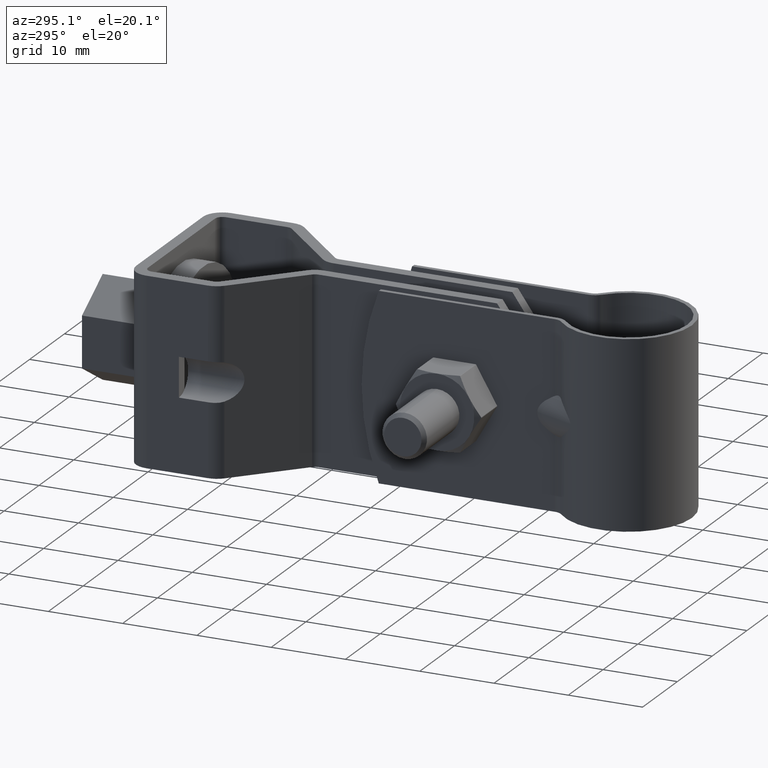
[diagram: clean part render]
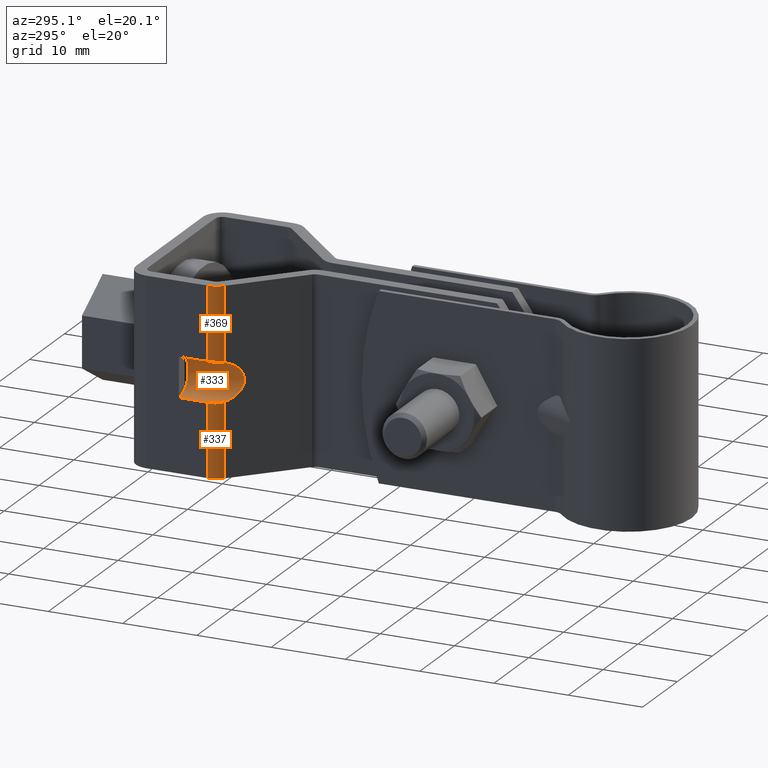
[diagram: same view with one multi-face feature highlighted, each face labeled with its STEP entity id]
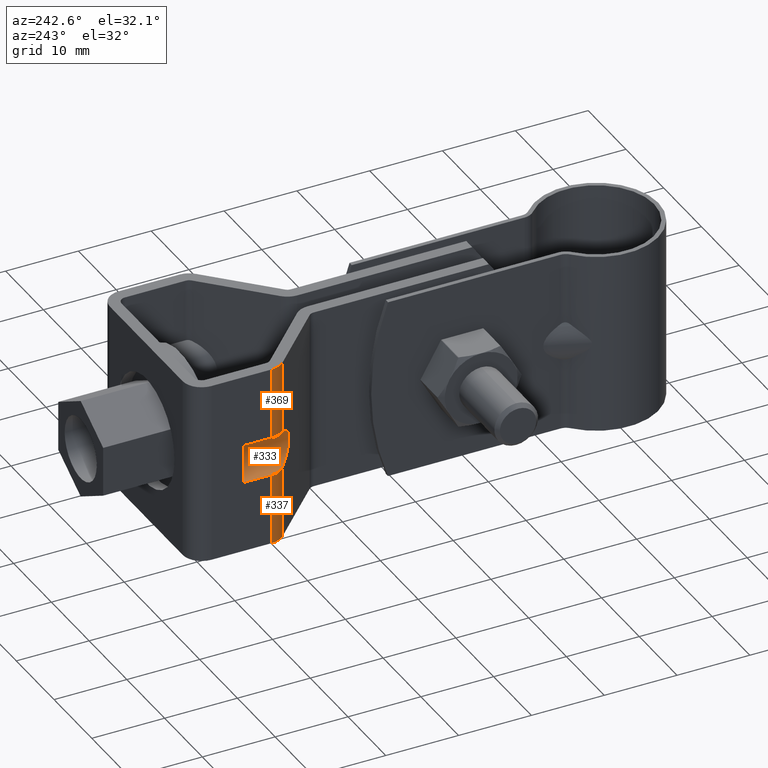
[diagram: same view with one multi-face feature highlighted, each face labeled with its STEP entity id]
A machine part, auxiliary view. The highlighted faces form ONE feature: a constant-radius fillet chain: 3 tangent blend faces with common blend radius 2.61667 mm. The faces share edges in the B-rep.
A second angle (auxiliary view) of the same feature is appended — it is thin or edge-on in the first view.
Their STEP definitions:
[1] entity #369 (Cylinder):
#369 = ADVANCED_FACE( '', ( #611 ), #612, .T. );
#611 = FACE_OUTER_BOUND( '', #883, .T. );
#612 = CYLINDRICAL_SURFACE( '', #884, 2.59999999999999 );
#883 = EDGE_LOOP( '', ( #1755, #1756, #1757, #1758 ) );
#884 = AXIS2_PLACEMENT_3D( '', #1759, #1760, #1761 );
#1755 = ORIENTED_EDGE( '', *, *, #2181, .T. );
#1756 = ORIENTED_EDGE( '', *, *, #2174, .T. );
#1757 = ORIENTED_EDGE( '', *, *, #2108, .F. );
#1758 = ORIENTED_EDGE( '', *, *, #2089, .T. );
#1759 = CARTESIAN_POINT( '', ( -9.64999999667435, 50.8874867335135, -12.4999987212384 ) );
#1760 = DIRECTION( '', ( -1.87698704392248E-011, 9.98350074832307E-009, -1.00000000000000 ) );
#1761 = DIRECTION( '', ( 1.39876277799465E-011, 1.00000000000000, 9.98350074832280E-009 ) );
#2089 = EDGE_CURVE( '', #2523, #2520, #2524, .T. );
#2108 = EDGE_CURVE( '', #2523, #2554, #2555, .T. );
#2174 = EDGE_CURVE( '', #2658, #2554, #2659, .T. );
#2181 = EDGE_CURVE( '', #2520, #2658, #2668, .T. );
#2520 = VERTEX_POINT( '', #3223 );
#2523 = VERTEX_POINT( '', #3226 );
#2524 = B_SPLINE_CURVE_WITH_KNOTS( '', 3, ( #3227, #3228, #3229, #3230, #3231, #3232, #3233, #3234, #3235, #3236 ), .UNSPECIFIED., .F., .F., ( 4, 2, 2, 2, 4 ), ( 0.000000000000000, 0.000517346174284563, 0.00103469234856913, 0.00155203852285369, 0.00206938469713825 ), .UNSPECIFIED. );
#2554 = VERTEX_POINT( '', #3293 );
#2555 = LINE( '', #3294, #3295 );
#2658 = VERTEX_POINT( '', #3465 );
#2659 = CIRCLE( '', #3466, 2.59999999999999 );
#2668 = LINE( '', #3479, #3480 );
#3223 = CARTESIAN_POINT( '', ( -11.4656419687975, 49.0264534757262, 2.53126230651432 ) );
#3226 = CARTESIAN_POINT( '', ( -12.2499999963900, 50.8874865822998, 2.65000127881040 ) );
#3227 = CARTESIAN_POINT( '', ( -12.2499999963900, 50.8874865822998, 2.65000127881040 ) );
#3228 = CARTESIAN_POINT( '', ( -12.2499999963924, 50.7125965180515, 2.65000127706439 ) );
#3229 = CARTESIAN_POINT( '', ( -12.2325330318031, 50.5406541101441, 2.65016497135224 ) );
#3230 = CARTESIAN_POINT( '', ( -12.1640563488471, 50.2024389201484, 2.64882863514734 ) );
#3231 = CARTESIAN_POINT( '', ( -12.1121297081050, 50.0343080718811, 2.64727722315480 ) );
#3232 = CARTESIAN_POINT( '', ( -11.9772119324915, 49.7152746167501, 2.63679190331089 ) );
#3233 = CARTESIAN_POINT( '', ( -11.8947254668699, 49.5642633974861, 2.62792904907605 ) );
#3234 = CARTESIAN_POINT( '', ( -11.7003962000626, 49.2795103880011, 2.59425647254720 ) );
#3235 = CARTESIAN_POINT( '', ( -11.5880224262739, 49.1458490381001, 2.56918415476098 ) );
#3236 = CARTESIAN_POINT( '', ( -11.4656419687975, 49.0264534757262, 2.53126230651432 ) );
#3293 = CARTESIAN_POINT( '', ( -12.2499999962051, 50.8874864839624, 12.5000012788104 ) );
#3294 = CARTESIAN_POINT( '', ( -12.2499999966743, 50.8874867335499, -12.4999987211896 ) );
#3295 = VECTOR( '', #3959, 1000.00000000000 );
#3465 = CARTESIAN_POINT( '', ( -11.4656419686104, 49.0264533762033, 12.5000012602161 ) );
#3466 = AXIS2_PLACEMENT_3D( '', #4061, #4062, #4063 );
#3479 = CARTESIAN_POINT( '', ( -11.4656419690797, 49.0264536257908, -12.4999987397839 ) );
#3480 = VECTOR( '', #4074, 1000.00000000000 );
#3959 = DIRECTION( '', ( 1.87698704392248E-011, -9.98350074832307E-009, 1.00000000000000 ) );
#4061 = CARTESIAN_POINT( '', ( -9.64999999620511, 50.8874864839260, 12.5000012787616 ) );
#4062 = DIRECTION( '', ( -1.87698704392238E-011, 9.98350074832307E-009, -1.00000000000000 ) );
#4063 = DIRECTION( '', ( -0.698323835540512, -0.715781964508738, -7.13290233039142E-009 ) );
#4074 = DIRECTION( '', ( 1.87698704392248E-011, -9.98350074832307E-009, 1.00000000000000 ) );
[2] entity #333 (Cylinder):
#333 = ADVANCED_FACE( '', ( #533 ), #534, .F. );
#533 = FACE_OUTER_BOUND( '', #805, .T. );
#534 = CYLINDRICAL_SURFACE( '', #806, 2.64999999999997 );
#805 = EDGE_LOOP( '', ( #1439, #1440, #1441, #1442, #1443, #1444, #1445, #1446 ) );
#806 = AXIS2_PLACEMENT_3D( '', #1447, #1448, #1449 );
#1439 = ORIENTED_EDGE( '', *, *, #2088, .F. );
#1440 = ORIENTED_EDGE( '', *, *, #2089, .F. );
#1441 = ORIENTED_EDGE( '', *, *, #2090, .T. );
#1442 = ORIENTED_EDGE( '', *, *, #2091, .T. );
#1443 = ORIENTED_EDGE( '', *, *, #2092, .T. );
#1444 = ORIENTED_EDGE( '', *, *, #2093, .T. );
#1445 = ORIENTED_EDGE( '', *, *, #2094, .F. );
#1446 = ORIENTED_EDGE( '', *, *, #2095, .F. );
#1447 = CARTESIAN_POINT( '', ( -12.2499999965249, 44.7916808096417, 1.21795294683036E-006 ) );
#1448 = DIRECTION( '', ( -1.39876277799466E-011, -1.00000000000000, -9.98350074832281E-009 ) );
#1449 = DIRECTION( '', ( -1.87488145554088E-011, 9.98350074832307E-009, -1.00000000000000 ) );
#2088 = EDGE_CURVE( '', #2520, #2521, #2522, .T. );
#2089 = EDGE_CURVE( '', #2523, #2520, #2524, .T. );
#2090 = EDGE_CURVE( '', #2523, #2525, #2526, .T. );
#2091 = EDGE_CURVE( '', #2525, #2527, #2528, .T. );
#2092 = EDGE_CURVE( '', #2527, #2529, #2530, .T. );
#2093 = EDGE_CURVE( '', #2529, #2531, #2532, .T. );
#2094 = EDGE_CURVE( '', #2533, #2531, #2534, .T. );
#2095 = EDGE_CURVE( '', #2521, #2533, #2535, .T. );
#2520 = VERTEX_POINT( '', #3223 );
#2521 = VERTEX_POINT( '', #3224 );
#2522 = ELLIPSE( '', #3225, 3.70224472166266, 2.64999999999997 );
#2523 = VERTEX_POINT( '', #3226 );
#2524 = B_SPLINE_CURVE_WITH_KNOTS( '', 3, ( #3227, #3228, #3229, #3230, #3231, #3232, #3233, #3234, #3235, #3236 ), .UNSPECIFIED., .F., .F., ( 4, 2, 2, 2, 4 ), ( 0.000000000000000, 0.000517346174284563, 0.00103469234856913, 0.00155203852285369, 0.00206938469713825 ), .UNSPECIFIED. );
#2525 = VERTEX_POINT( '', #3237 );
#2526 = LINE( '', #3238, #3239 );
#2527 = VERTEX_POINT( '', #3240 );
#2528 = CIRCLE( '', #3241, 2.64999999999997 );
#2529 = VERTEX_POINT( '', #3242 );
#2530 = CIRCLE( '', #3243, 2.64999999999997 );
#2531 = VERTEX_POINT( '', #3244 );
#2532 = CIRCLE( '', #3245, 2.64999999999997 );
#2533 = VERTEX_POINT( '', #3246 );
#2534 = LINE( '', #3247, #3248 );
#2535 = B_SPLINE_CURVE_WITH_KNOTS( '', 3, ( #3249, #3250, #3251, #3252, #3253, #3254, #3255, #3256 ), .UNSPECIFIED., .F., .F., ( 4, 2, 2, 4 ), ( 1.73472347597678E-018, 0.000516787748161299, 0.00103357549632260, 0.00206715099264519 ), .UNSPECIFIED. );
#3223 = CARTESIAN_POINT( '', ( -11.4656419687975, 49.0264534757262, 2.53126230651432 ) );
#3224 = CARTESIAN_POINT( '', ( -11.4656419688926, 49.0264535262678, -2.53125978608215 ) );
#3225 = AXIS2_PLACEMENT_3D( '', #3931, #3932, #3933 );
#3226 = CARTESIAN_POINT( '', ( -12.2499999963900, 50.8874865822998, 2.65000127881040 ) );
#3227 = CARTESIAN_POINT( '', ( -12.2499999963900, 50.8874865822998, 2.65000127881040 ) );
#3228 = CARTESIAN_POINT( '', ( -12.2499999963924, 50.7125965180515, 2.65000127706439 ) );
#3229 = CARTESIAN_POINT( '', ( -12.2325330318031, 50.5406541101441, 2.65016497135224 ) );
#3230 = CARTESIAN_POINT( '', ( -12.1640563488471, 50.2024389201484, 2.64882863514734 ) );
#3231 = CARTESIAN_POINT( '', ( -12.1121297081050, 50.0343080718811, 2.64727722315480 ) );
#3232 = CARTESIAN_POINT( '', ( -11.9772119324915, 49.7152746167501, 2.63679190331089 ) );
#3233 = CARTESIAN_POINT( '', ( -11.8947254668699, 49.5642633974861, 2.62792904907605 ) );
#3234 = CARTESIAN_POINT( '', ( -11.7003962000626, 49.2795103880011, 2.59425647254720 ) );
#3235 = CARTESIAN_POINT( '', ( -11.5880224262739, 49.1458490381001, 2.56918415476098 ) );
#3236 = CARTESIAN_POINT( '', ( -11.4656419687975, 49.0264534757262, 2.53126230651432 ) );
#3237 = CARTESIAN_POINT( '', ( -12.2499999963354, 54.7916807831855, 2.65000131778793 ) );
#3238 = CARTESIAN_POINT( '', ( -12.2499999964752, 44.7916807831854, 2.65000121795292 ) );
#3239 = VECTOR( '', #3934, 1000.00000000000 );
#3240 = CARTESIAN_POINT( '', ( -10.6499999963455, 54.7916807885296, 2.11246433518569 ) );
#3241 = AXIS2_PLACEMENT_3D( '', #3935, #3936, #3937 );
#3242 = CARTESIAN_POINT( '', ( -10.6499999964248, 54.7916808307091, -2.11246169966983 ) );
#3243 = AXIS2_PLACEMENT_3D( '', #3938, #3939, #3940 );
#3244 = CARTESIAN_POINT( '', ( -12.2499999964349, 54.7916808360980, -2.64999868221201 ) );
#3245 = AXIS2_PLACEMENT_3D( '', #3941, #3942, #3943 );
#3246 = CARTESIAN_POINT( '', ( -12.2499999964894, 50.8874866352124, -2.64999872118954 ) );
#3247 = CARTESIAN_POINT( '', ( -12.2499999965747, 44.7916808360980, -2.64999878204703 ) );
#3248 = VECTOR( '', #3944, 1000.00000000000 );
#3249 = CARTESIAN_POINT( '', ( -11.4656419688926, 49.0264535262678, -2.53125978608217 ) );
#3250 = CARTESIAN_POINT( '', ( -11.5880007559433, 49.1458279475198, -2.56917491695805 ) );
#3251 = CARTESIAN_POINT( '', ( -11.6979909690924, 49.2765269131359, -2.59373740709285 ) );
#3252 = CARTESIAN_POINT( '', ( -11.8919852965511, 49.5597215343414, -2.62754887255289 ) );
#3253 = CARTESIAN_POINT( '', ( -11.9765770422515, 49.7140467329672, -2.63672400079270 ) );
#3254 = CARTESIAN_POINT( '', ( -12.1789955990111, 50.1918796649677, -2.65250308748342 ) );
#3255 = CARTESIAN_POINT( '', ( -12.2499999964943, 50.5379447931652, -2.64999872467919 ) );
#3256 = CARTESIAN_POINT( '', ( -12.2499999964894, 50.8874866352124, -2.64999872118954 ) );
#3931 = CARTESIAN_POINT( '', ( -12.2499999964550, 49.7916808096419, 1.26787044751886E-006 ) );
#3932 = DIRECTION( '', ( 0.698323835540509, 0.715781964508740, 7.13290236549389E-009 ) );
#3933 = DIRECTION( '', ( -0.715781964508740, 0.698323835540509, 6.98515163344706E-009 ) );
#3934 = DIRECTION( '', ( 1.39876277799465E-011, 1.00000000000000, 9.98350074832280E-009 ) );
#3935 = CARTESIAN_POINT( '', ( -12.2499999963851, 54.7916808096418, 1.31778796208515E-006 ) );
#3936 = DIRECTION( '', ( 1.39876277799465E-011, 1.00000000000000, 9.98350074832280E-009 ) );
#3937 = DIRECTION( '', ( -1.87704167722794E-011, 9.98350074832306E-009, -1.00000000000000 ) );
#3938 = CARTESIAN_POINT( '', ( -12.2499999963851, 54.7916808096418, 1.31778796208515E-006 ) );
#3939 = DIRECTION( '', ( 1.39876277799465E-011, 1.00000000000000, 9.98350074832280E-009 ) );
#3940 = DIRECTION( '', ( -1.87704167722794E-011, 9.98350074832306E-009, -1.00000000000000 ) );
#3941 = CARTESIAN_POINT( '', ( -12.2499999963851, 54.7916808096418, 1.31778796208515E-006 ) );
#3942 = DIRECTION( '', ( 1.39876277799465E-011, 1.00000000000000, 9.98350074832280E-009 ) );
#3943 = DIRECTION( '', ( -1.87704167722794E-011, 9.98350074832306E-009, -1.00000000000000 ) );
#3944 = DIRECTION( '', ( 1.39876277799465E-011, 1.00000000000000, 9.98350074832280E-009 ) );
[3] entity #337 (Cylinder):
#337 = ADVANCED_FACE( '', ( #541 ), #542, .T. );
#541 = FACE_OUTER_BOUND( '', #813, .T. );
#542 = CYLINDRICAL_SURFACE( '', #814, 2.59999999999999 );
#813 = EDGE_LOOP( '', ( #1473, #1474, #1475, #1476 ) );
#814 = AXIS2_PLACEMENT_3D( '', #1477, #1478, #1479 );
#1473 = ORIENTED_EDGE( '', *, *, #2106, .F. );
#1474 = ORIENTED_EDGE( '', *, *, #2068, .F. );
#1475 = ORIENTED_EDGE( '', *, *, #2107, .T. );
#1476 = ORIENTED_EDGE( '', *, *, #2095, .T. );
#1477 = CARTESIAN_POINT( '', ( -9.64999999667435, 50.8874867335135, -12.4999987212384 ) );
#1478 = DIRECTION( '', ( -1.87698704392248E-011, 9.98350074832307E-009, -1.00000000000000 ) );
#1479 = DIRECTION( '', ( 1.39876277799465E-011, 1.00000000000000, 9.98350074832280E-009 ) );
#2068 = EDGE_CURVE( '', #2482, #2484, #2485, .T. );
#2095 = EDGE_CURVE( '', #2521, #2533, #2535, .T. );
#2106 = EDGE_CURVE( '', #2484, #2533, #2552, .T. );
#2107 = EDGE_CURVE( '', #2482, #2521, #2553, .T. );
#2482 = VERTEX_POINT( '', #3173 );
#2484 = VERTEX_POINT( '', #3176 );
#2485 = CIRCLE( '', #3177, 2.59999999999999 );
#2521 = VERTEX_POINT( '', #3224 );
#2533 = VERTEX_POINT( '', #3246 );
#2535 = B_SPLINE_CURVE_WITH_KNOTS( '', 3, ( #3249, #3250, #3251, #3252, #3253, #3254, #3255, #3256 ), .UNSPECIFIED., .F., .F., ( 4, 2, 2, 4 ), ( 1.73472347597678E-018, 0.000516787748161299, 0.00103357549632260, 0.00206715099264519 ), .UNSPECIFIED. );
#2552 = LINE( '', #3289, #3290 );
#2553 = LINE( '', #3291, #3292 );
#3173 = CARTESIAN_POINT( '', ( -11.4656419690797, 49.0264536257908, -12.4999987397839 ) );
#3176 = CARTESIAN_POINT( '', ( -12.2499999966743, 50.8874867335499, -12.4999987211896 ) );
#3177 = AXIS2_PLACEMENT_3D( '', #3893, #3894, #3895 );
#3224 = CARTESIAN_POINT( '', ( -11.4656419688926, 49.0264535262678, -2.53125978608215 ) );
#3246 = CARTESIAN_POINT( '', ( -12.2499999964894, 50.8874866352124, -2.64999872118954 ) );
#3249 = CARTESIAN_POINT( '', ( -11.4656419688926, 49.0264535262678, -2.53125978608217 ) );
#3250 = CARTESIAN_POINT( '', ( -11.5880007559433, 49.1458279475198, -2.56917491695805 ) );
#3251 = CARTESIAN_POINT( '', ( -11.6979909690924, 49.2765269131359, -2.59373740709285 ) );
#3252 = CARTESIAN_POINT( '', ( -11.8919852965511, 49.5597215343414, -2.62754887255289 ) );
#3253 = CARTESIAN_POINT( '', ( -11.9765770422515, 49.7140467329672, -2.63672400079270 ) );
#3254 = CARTESIAN_POINT( '', ( -12.1789955990111, 50.1918796649677, -2.65250308748342 ) );
#3255 = CARTESIAN_POINT( '', ( -12.2499999964943, 50.5379447931652, -2.64999872467919 ) );
#3256 = CARTESIAN_POINT( '', ( -12.2499999964894, 50.8874866352124, -2.64999872118954 ) );
#3289 = CARTESIAN_POINT( '', ( -12.2499999966743, 50.8874867335499, -12.4999987211896 ) );
#3290 = VECTOR( '', #3957, 1000.00000000000 );
#3291 = CARTESIAN_POINT( '', ( -11.4656419690797, 49.0264536257908, -12.4999987397839 ) );
#3292 = VECTOR( '', #3958, 1000.00000000000 );
#3893 = CARTESIAN_POINT( '', ( -9.64999999667435, 50.8874867335135, -12.4999987212384 ) );
#3894 = DIRECTION( '', ( -1.87698704392238E-011, 9.98350074832307E-009, -1.00000000000000 ) );
#3895 = DIRECTION( '', ( -0.698323835540512, -0.715781964508738, -7.13290233039142E-009 ) );
#3957 = DIRECTION( '', ( 1.87698704392248E-011, -9.98350074832307E-009, 1.00000000000000 ) );
#3958 = DIRECTION( '', ( 1.87698704392248E-011, -9.98350074832307E-009, 1.00000000000000 ) );